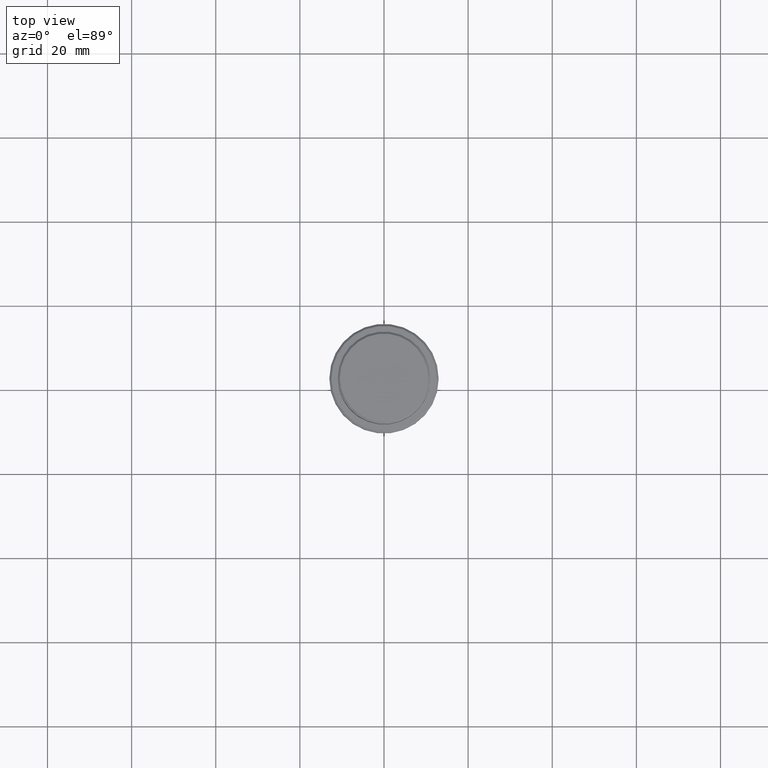
[diagram: clean part render]
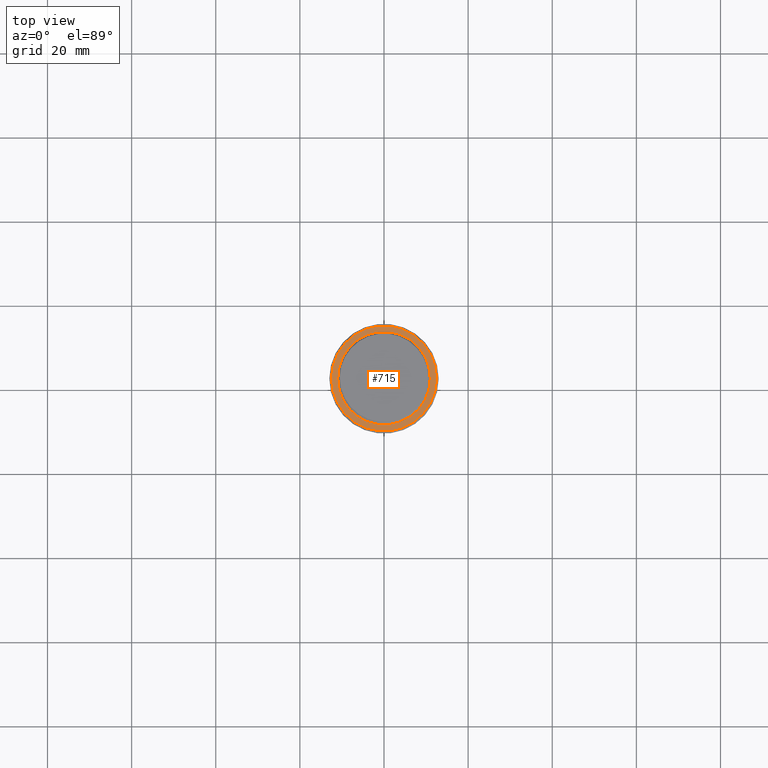
[diagram: same view with one face highlighted and labeled with its STEP entity id]
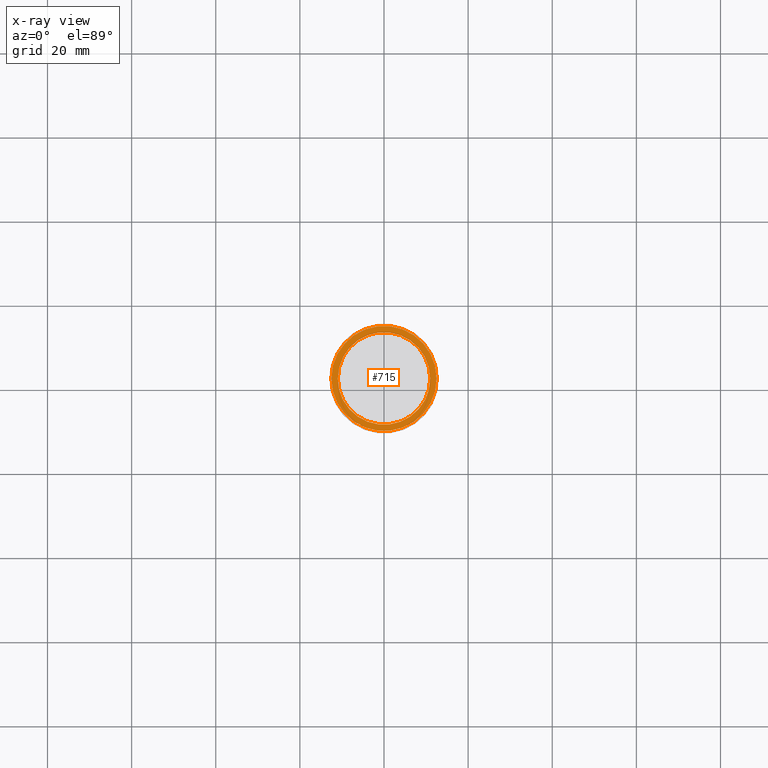
[diagram: x-ray of the same camera — body ghosted, the highlighted face saturated]
A machine part, top view. The second image highlights one B-rep face of the part: STEP entity #715.
The next image is the same camera in x-ray: the body ghosted, the highlighted face saturated — about 0% of this face is hidden behind the body in this view.
In plain terms, the highlighted planar face has unit normal (0, -0, 1).
Its self-contained STEP definition (entity closure, byte-faithful):
#11 = VERTEX_POINT ( 'NONE', #306 ) ;
#28 = CARTESIAN_POINT ( 'NONE',  ( -12.49999999999998401, 0.000000000000000000, -10.00000000000000000 ) ) ;
#38 = CARTESIAN_POINT ( 'NONE',  ( 0.000000000000000000, 0.000000000000000000, -10.00000000000000000 ) ) ;
#81 = EDGE_CURVE ( 'NONE', #1114, #1410, #1164, .T. ) ;
#94 = ORIENTED_EDGE ( 'NONE', *, *, #81, .T. ) ;
#101 = CARTESIAN_POINT ( 'NONE',  ( 0.000000000000000000, 10.49999999999996625, -10.00000000000000000 ) ) ;
#107 = CARTESIAN_POINT ( 'NONE',  ( 0.000000000000000000, 0.000000000000000000, -10.00000000000000000 ) ) ;
#133 = CIRCLE ( 'NONE', #1389, 10.99999999999996625 ) ;
#176 = CIRCLE ( 'NONE', #635, 10.99999999999996625 ) ;
#216 = DIRECTION ( 'NONE',  ( 1.000000000000000000, 0.000000000000000000, 0.000000000000000000 ) ) ;
#257 = ORIENTED_EDGE ( 'NONE', *, *, #734, .T. ) ;
#273 = EDGE_LOOP ( 'NONE', ( #901, #492 ) ) ;
#306 = CARTESIAN_POINT ( 'NONE',  ( -10.99999999999996625, 1.347111479062084460E-15, -10.00000000000000000 ) ) ;
#339 = AXIS2_PLACEMENT_3D ( 'NONE', #1156, #747, #732 ) ;
#446 = EDGE_CURVE ( 'NONE', #11, #816, #176, .T. ) ;
#462 = FACE_OUTER_BOUND ( 'NONE', #1110, .T. ) ;
#486 = DIRECTION ( 'NONE',  ( 0.000000000000000000, 0.000000000000000000, -1.000000000000000000 ) ) ;
#492 = ORIENTED_EDGE ( 'NONE', *, *, #446, .T. ) ;
#635 = AXIS2_PLACEMENT_3D ( 'NONE', #38, #486, #1236 ) ;
#677 = DIRECTION ( 'NONE',  ( -0.000000000000000000, -0.000000000000000000, 1.000000000000000000 ) ) ;
#715 = ADVANCED_FACE ( 'NONE', ( #462, #1207 ), #1313, .T. ) ;
#732 = DIRECTION ( 'NONE',  ( 1.000000000000000000, 0.000000000000000000, 0.000000000000000000 ) ) ;
#734 = EDGE_CURVE ( 'NONE', #1410, #1114, #962, .T. ) ;
#747 = DIRECTION ( 'NONE',  ( -0.000000000000000000, -0.000000000000000000, 1.000000000000000000 ) ) ;
#816 = VERTEX_POINT ( 'NONE', #1265 ) ;
#860 = DIRECTION ( 'NONE',  ( 1.000000000000000000, 0.000000000000000000, 0.000000000000000000 ) ) ;
#901 = ORIENTED_EDGE ( 'NONE', *, *, #1022, .T. ) ;
#905 = DIRECTION ( 'NONE',  ( 0.000000000000000000, -0.000000000000000000, 1.000000000000000000 ) ) ;
#918 = AXIS2_PLACEMENT_3D ( 'NONE', #107, #677, #860 ) ;
#956 = DIRECTION ( 'NONE',  ( 0.000000000000000000, 0.000000000000000000, -1.000000000000000000 ) ) ;
#962 = CIRCLE ( 'NONE', #918, 12.49999999999998401 ) ;
#966 = DIRECTION ( 'NONE',  ( 1.000000000000000000, 0.000000000000000000, 0.000000000000000000 ) ) ;
#1022 = EDGE_CURVE ( 'NONE', #816, #11, #133, .T. ) ;
#1054 = CARTESIAN_POINT ( 'NONE',  ( 0.000000000000000000, 0.000000000000000000, -10.00000000000000000 ) ) ;
#1110 = EDGE_LOOP ( 'NONE', ( #94, #257 ) ) ;
#1114 = VERTEX_POINT ( 'NONE', #28 ) ;
#1156 = CARTESIAN_POINT ( 'NONE',  ( 0.000000000000000000, 0.000000000000000000, -10.00000000000000000 ) ) ;
#1164 = CIRCLE ( 'NONE', #339, 12.49999999999998401 ) ;
#1207 = FACE_BOUND ( 'NONE', #273, .T. ) ;
#1236 = DIRECTION ( 'NONE',  ( 1.000000000000000000, 0.000000000000000000, 0.000000000000000000 ) ) ;
#1264 = AXIS2_PLACEMENT_3D ( 'NONE', #101, #905, #216 ) ;
#1265 = CARTESIAN_POINT ( 'NONE',  ( 10.99999999999996625, 0.000000000000000000, -10.00000000000000000 ) ) ;
#1313 = PLANE ( 'NONE',  #1264 ) ;
#1389 = AXIS2_PLACEMENT_3D ( 'NONE', #1054, #956, #966 ) ;
#1406 = CARTESIAN_POINT ( 'NONE',  ( 12.49999999999998401, 1.561424668912874125E-15, -10.00000000000000000 ) ) ;
#1410 = VERTEX_POINT ( 'NONE', #1406 ) ;